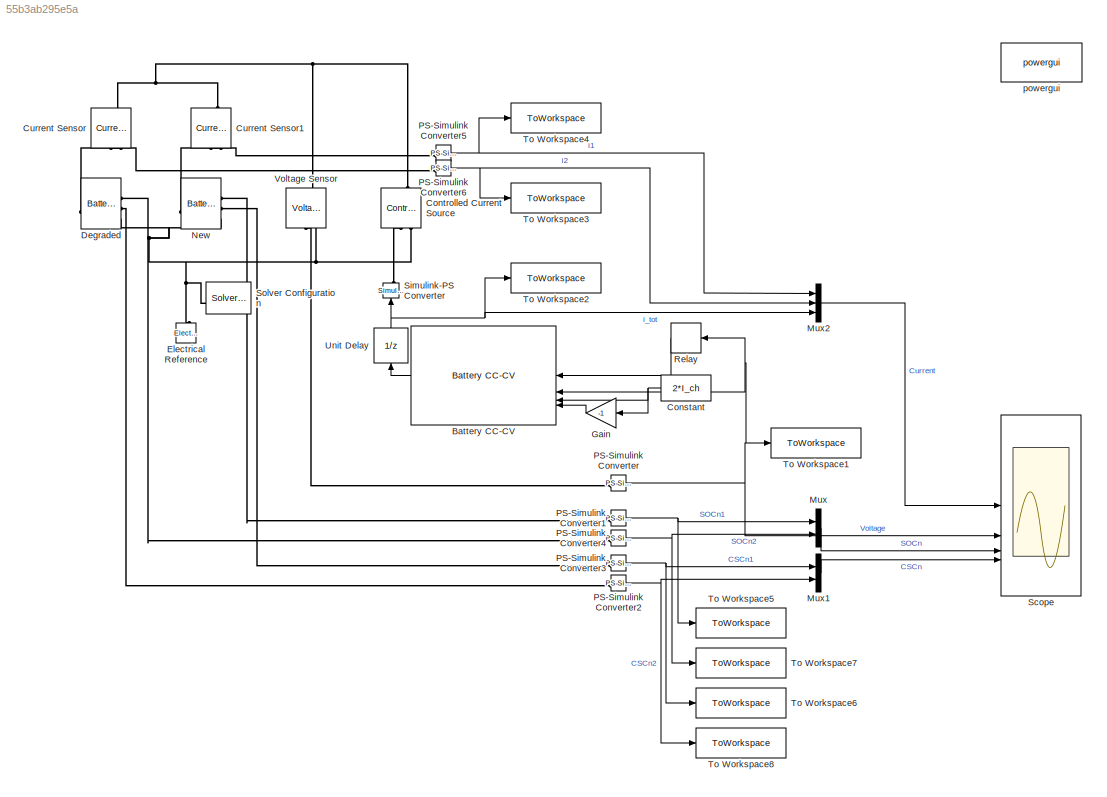
MODEL slx_55b3ab295e5a
KIND model
CONFIG AbsTol = auto
CONFIG EnableMultiTasking = off
CONFIG FixedStep = Ts
CONFIG MaxStep = auto
CONFIG MinStep = auto
CONFIG RelTol = 1e-3
CONFIG SampleTimeConstraint = Unconstrained
CONFIG SolverName = FixedStepAuto
CONFIG StartTime = 0.0
CONFIG StopTime = simTime
BLOCK [Reference] Battery CC-CV  REF=BatteryCurrentManagement/Battery CC-CV
  LibrarySourceBlock = batt_sl_lib/Current Management/Battery CC-CV
  SourceBlock = BatteryCurrentManagement/Battery CC-CV
  SourceType = Battery CC-CV
BLOCK [Constant] Constant
  NameLocation = top
  Value = 2*I_ch
BLOCK [Reference] Controlled Current Source  REF=fl_lib/Electrical/Electrical Sources/Controlled Current
Source
  NameLocation = right
  SourceBlock = fl_lib/Electrical/Electrical Sources/Controlled Current\nSource
  SourceType = Controlled Current\nSource
BLOCK [Reference] Current Sensor  REF=fl_lib/Electrical/Electrical Sensors/Current Sensor
  LibrarySourceBlock = ee_lib/Sensors &\nTransducers/Current Sensor
  NameLocation = left
  SourceBlock = fl_lib/Electrical/Electrical Sensors/Current Sensor
  SourceType = Current Sensor
BLOCK [Reference] Current Sensor1  REF=fl_lib/Electrical/Electrical Sensors/Current Sensor
  LibrarySourceBlock = ee_lib/Sensors &\nTransducers/Current Sensor
  NameLocation = left
  SourceBlock = fl_lib/Electrical/Electrical Sensors/Current Sensor
  SourceType = Current Sensor
BLOCK [Reference] Degraded  REF=EHMCell_lib/Battery EHM
  SourceBlock = EHMCell_lib/Battery EHM
  SourceType = Battery EHM
BLOCK [Reference] Electrical Reference  REF=fl_lib/Electrical/Electrical Elements/Electrical Reference
  LibrarySourceBlock = ee_lib/Connectors &\nReferences/Electrical Reference
  NameLocation = right
  SourceBlock = fl_lib/Electrical/Electrical Elements/Electrical Reference
  SourceType = Electrical Reference
BLOCK [Gain] Gain
  Gain = -1
  NameLocation = top
BLOCK [Mux] Mux
  DisplayOption = bar
  Inputs = 2
BLOCK [Mux] Mux1
  DisplayOption = bar
  Inputs = 2
BLOCK [Mux] Mux2
  DisplayOption = bar
  Inputs = 3
BLOCK [Reference] New  REF=EHMCell_lib/Battery EHM
  SourceBlock = EHMCell_lib/Battery EHM
  SourceType = Battery EHM
BLOCK [Reference] PS-Simulink Converter  REF=nesl_utility/PS-Simulink
Converter
  SourceBlock = nesl_utility/PS-Simulink\nConverter
  SourceType = PS-Simulink\nConverter
BLOCK [Reference] PS-Simulink Converter1  REF=nesl_utility/PS-Simulink
Converter
  SourceBlock = nesl_utility/PS-Simulink\nConverter
  SourceType = PS-Simulink\nConverter
BLOCK [Reference] PS-Simulink Converter2  REF=nesl_utility/PS-Simulink
Converter
  SourceBlock = nesl_utility/PS-Simulink\nConverter
  SourceType = PS-Simulink\nConverter
BLOCK [Reference] PS-Simulink Converter3  REF=nesl_utility/PS-Simulink
Converter
  SourceBlock = nesl_utility/PS-Simulink\nConverter
  SourceType = PS-Simulink\nConverter
BLOCK [Reference] PS-Simulink Converter4  REF=nesl_utility/PS-Simulink
Converter
  SourceBlock = nesl_utility/PS-Simulink\nConverter
  SourceType = PS-Simulink\nConverter
BLOCK [Reference] PS-Simulink Converter5  REF=nesl_utility/PS-Simulink
Converter
  SourceBlock = nesl_utility/PS-Simulink\nConverter
  SourceType = PS-Simulink\nConverter
BLOCK [Reference] PS-Simulink Converter6  REF=nesl_utility/PS-Simulink
Converter
  SourceBlock = nesl_utility/PS-Simulink\nConverter
  SourceType = PS-Simulink\nConverter
BLOCK [Relay] Relay
  NameLocation = top
  OffOutputValue = 1
  OffSwitchValue = p.volt_min+0.05
  OnOutputValue = 0
  OnSwitchValue = p.volt_max-0.05
BLOCK [Scope] Scope
  Floating = off
  NumInputPorts = 4
  ScopeSpecificationString = Simulink.scopes.TimeScopeBlockCfg('CurrentConfiguration', extmgr.ConfigurationSet(extmgr.Configuration('Core','General UI',true,'FigureColor',[1 1 1]),extmgr.Configuration('Core','Source UI',true),extmgr.Configuration('Sources','WiredSimulink',true),extmgr.Configuration('Visuals','Time Domain',true,'SerializedDisplays',{struct('MinYLimReal','-5.75','MaxYLimReal','5.75','YLabelReal','','MinYLimMag'...<+4154ch>
BLOCK [Reference] Simulink-PS Converter  REF=nesl_utility/Simulink-PS
Converter
  NameLocation = right
  SourceBlock = nesl_utility/Simulink-PS\nConverter
  SourceType = Simulink-PS\nConverter
BLOCK [Reference] Solver Configuration  REF=nesl_utility/Solver
Configuration
  NameLocation = top
  SourceBlock = nesl_utility/Solver\nConfiguration
  SourceType = Solver\nConfiguration
BLOCK [ToWorkspace] To Workspace1
  FixptAsFi = on
  MaxDataPoints = inf
  SampleTime = -1
  Save2DSignal = 2-D array (concatenate along first dimension)
  SaveFormat = Timeseries
  VariableName = Vsim
BLOCK [ToWorkspace] To Workspace2
  FixptAsFi = on
  MaxDataPoints = inf
  SampleTime = -1
  Save2DSignal = 2-D array (concatenate along first dimension)
  SaveFormat = Timeseries
  VariableName = Isim
BLOCK [ToWorkspace] To Workspace3
  FixptAsFi = on
  MaxDataPoints = inf
  SampleTime = -1
  Save2DSignal = 2-D array (concatenate along first dimension)
  SaveFormat = Timeseries
  VariableName = Isim2
BLOCK [ToWorkspace] To Workspace4
  FixptAsFi = on
  MaxDataPoints = inf
  SampleTime = -1
  Save2DSignal = 2-D array (concatenate along first dimension)
  SaveFormat = Timeseries
  VariableName = Isim1
BLOCK [ToWorkspace] To Workspace5
  FixptAsFi = on
  MaxDataPoints = inf
  SampleTime = -1
  Save2DSignal = 2-D array (concatenate along first dimension)
  SaveFormat = Timeseries
  VariableName = SOCn1
BLOCK [ToWorkspace] To Workspace6
  FixptAsFi = on
  MaxDataPoints = inf
  SampleTime = -1
  Save2DSignal = 2-D array (concatenate along first dimension)
  SaveFormat = Timeseries
  VariableName = CSCn1
BLOCK [ToWorkspace] To Workspace7
  FixptAsFi = on
  MaxDataPoints = inf
  SampleTime = -1
  Save2DSignal = 2-D array (concatenate along first dimension)
  SaveFormat = Timeseries
  VariableName = SOCn2
BLOCK [ToWorkspace] To Workspace8
  FixptAsFi = on
  MaxDataPoints = inf
  SampleTime = -1
  Save2DSignal = 2-D array (concatenate along first dimension)
  SaveFormat = Timeseries
  VariableName = CSCn2
BLOCK [UnitDelay] Unit Delay
  HasFrameUpgradeWarning = on
  NameLocation = left
  SampleTime = -1
BLOCK [Reference] Voltage Sensor  REF=fl_lib/Electrical/Electrical Sensors/Voltage Sensor
  NameLocation = right
  SourceBlock = fl_lib/Electrical/Electrical Sensors/Voltage Sensor
  SourceType = Voltage Sensor
BLOCK [Reference] powergui  REF=spspowerguiLib/powergui
  LibrarySourceBlock = sps_lib/powergui
  Priority = 1
  SourceBlock = spspowerguiLib/powergui
  SourceType = PSB option menu block
LINE Battery CC-CV:1 -> Unit Delay:1
NET Constant:1 -> Battery CC-CV:3, Gain:1
LINE Gain:1 -> Battery CC-CV:4
LINE Mux1:1 -> Scope:4
LINE Mux2:1 -> Scope:1
LINE Mux:1 -> Scope:3
NET PS-Simulink Converter1:1 -> Mux:1, To Workspace5:1
NET PS-Simulink Converter2:1 -> Mux1:2, To Workspace8:1
NET PS-Simulink Converter3:1 -> Mux1:1, To Workspace6:1
NET PS-Simulink Converter4:1 -> Mux:2, To Workspace7:1
NET PS-Simulink Converter5:1 -> Mux2:1, To Workspace4:1
NET PS-Simulink Converter6:1 -> Mux2:2, To Workspace3:1
NET PS-Simulink Converter:1 -> Battery CC-CV:2, Relay:1, Scope:2, To Workspace1:1
LINE Relay:1 -> Battery CC-CV:1
NET Unit Delay:1 -> Mux2:3, Simulink-PS Converter:1, To Workspace2:1
PNET net1: Controlled Current Source:LConn1 -- Current Sensor1:LConn1 -- Current Sensor:LConn1 -- Voltage Sensor:LConn1
PLINE Controlled Current Source:RConn1 -- Simulink-PS Converter:RConn1
PNET net2: Controlled Current Source:RConn2 -- Degraded:RConn3 -- Electrical Reference:LConn1 -- New:RConn3 -- Solver Configuration:RConn1 -- Voltage Sensor:RConn2
PLINE Current Sensor1:RConn1 -- PS-Simulink Converter5:LConn1
PLINE Current Sensor1:RConn2 -- New:LConn1
PLINE Current Sensor:RConn1 -- PS-Simulink Converter6:LConn1
PLINE Current Sensor:RConn2 -- Degraded:LConn1
PLINE Degraded:RConn1 -- PS-Simulink Converter4:LConn1
PLINE Degraded:RConn2 -- PS-Simulink Converter2:LConn1
PLINE New:RConn1 -- PS-Simulink Converter1:LConn1
PLINE New:RConn2 -- PS-Simulink Converter3:LConn1
PLINE PS-Simulink Converter:LConn1 -- Voltage Sensor:RConn1
note: NET lines group one-source signal fan-out (src -> all destinations, sorted); 1:1 wires keep LINE; PNET lines group multi-terminal physical nets as a canonical sorted terminal list (undirected conserving connections); 2-terminal nets keep the pairwise PLINE form
